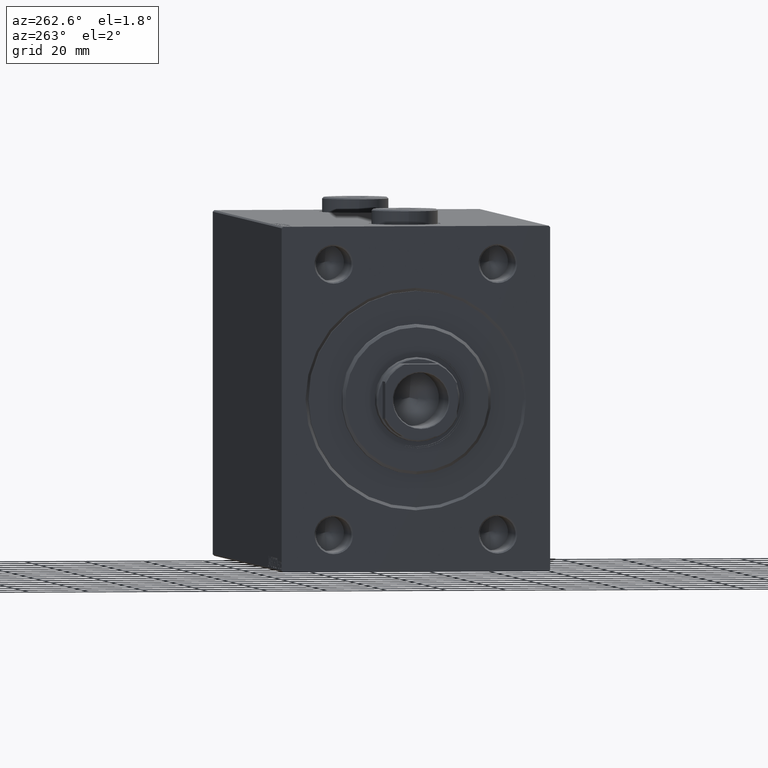
[diagram: clean part render]
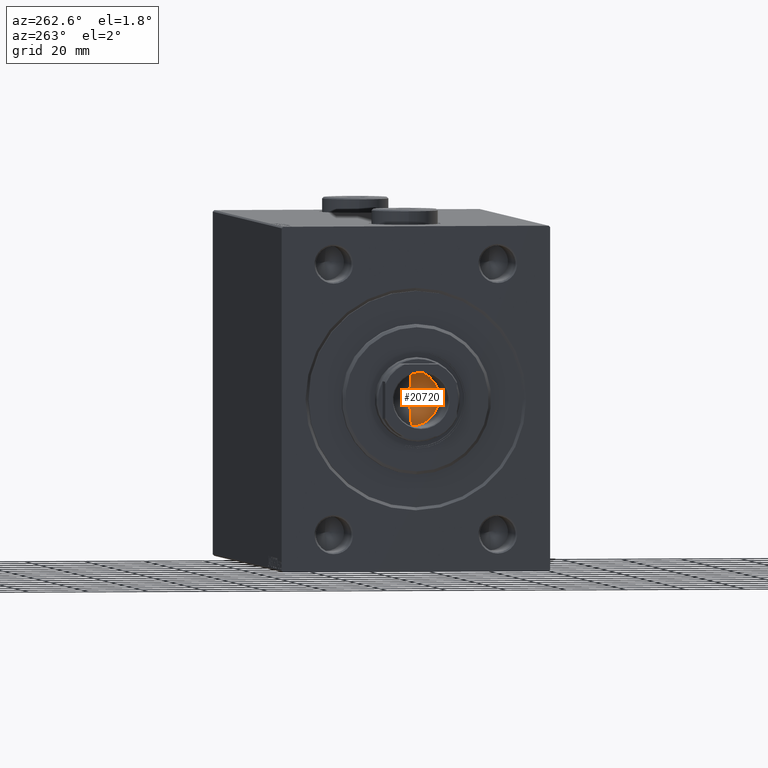
[diagram: same view with one face highlighted and labeled with its STEP entity id]
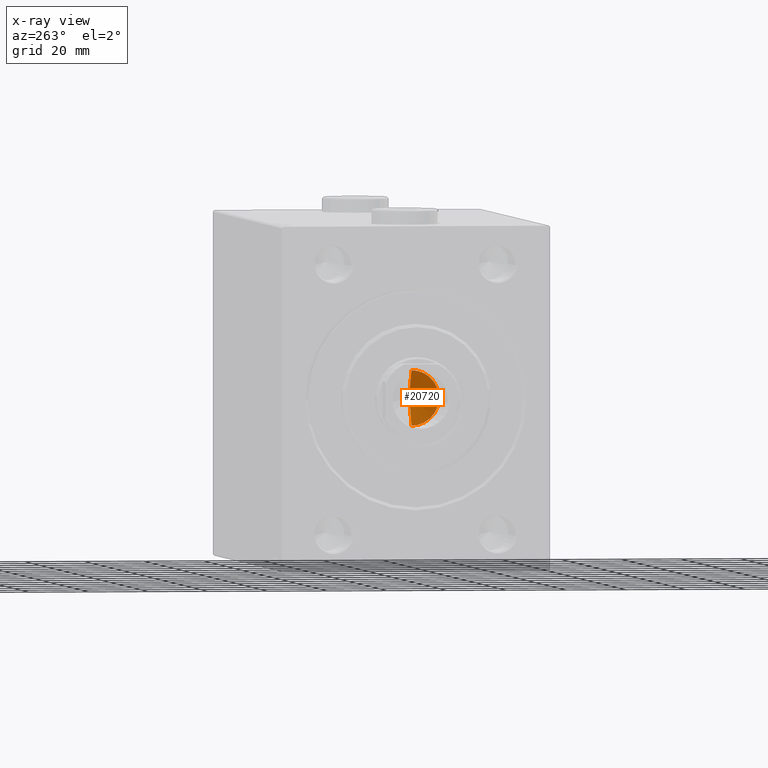
[diagram: x-ray of the same camera — body ghosted, the highlighted face saturated]
A machine part, auxiliary view. The second image highlights one B-rep face of the part: STEP entity #20720.
The next image is the same camera in x-ray: the body ghosted, the highlighted face saturated — about 0% of this face is hidden behind the body in this view.
In plain terms, the highlighted conical surface has half-angle 59 deg.
Its self-contained STEP definition (entity closure, byte-faithful):
#131 = VECTOR ( 'NONE', #41001, 1000.000000000000000 ) ;
#1803 = CARTESIAN_POINT ( 'NONE',  ( 0.000000000000000000, 0.000000000000000000, 149.0000000000000000 ) ) ;
#2464 = DIRECTION ( 'NONE',  ( 1.000000000000000000, 0.000000000000000000, 0.000000000000000000 ) ) ;
#4010 = VECTOR ( 'NONE', #37596, 1000.000000000000000 ) ;
#7447 = VERTEX_POINT ( 'NONE', #8524 ) ;
#8524 = CARTESIAN_POINT ( 'NONE',  ( -6.793016015247754405E-15, 0.000000000000000000, 143.4420392739950501 ) ) ;
#11896 = VERTEX_POINT ( 'NONE', #45362 ) ;
#16250 = EDGE_CURVE ( 'NONE', #7447, #42526, #26893, .T. ) ;
#18723 = EDGE_CURVE ( 'NONE', #42526, #11896, #33256, .T. ) ;
#20032 = FACE_OUTER_BOUND ( 'NONE', #44865, .T. ) ;
#20720 = ADVANCED_FACE ( 'NONE', ( #20032 ), #32001, .F. ) ;
#20946 = ORIENTED_EDGE ( 'NONE', *, *, #21550, .F. ) ;
#21550 = EDGE_CURVE ( 'NONE', #7447, #11896, #24182, .T. ) ;
#24182 = LINE ( 'NONE', #42226, #4010 ) ;
#24417 = AXIS2_PLACEMENT_3D ( 'NONE', #1803, #41099, #34378 ) ;
#26431 = CARTESIAN_POINT ( 'NONE',  ( -9.249999999999994671, 1.132798289211300909E-15, 149.0000000000000000 ) ) ;
#26893 = LINE ( 'NONE', #26431, #131 ) ;
#32001 = CONICAL_SURFACE ( 'NONE', #37893, 9.249999999999994671, 1.029744258676652535 ) ;
#33256 = CIRCLE ( 'NONE', #24417, 9.249999999999994671 ) ;
#34124 = CARTESIAN_POINT ( 'NONE',  ( 0.000000000000000000, 0.000000000000000000, 149.0000000000000000 ) ) ;
#34239 = CARTESIAN_POINT ( 'NONE',  ( -9.249999999999994671, 1.132798289211300909E-15, 149.0000000000000000 ) ) ;
#34378 = DIRECTION ( 'NONE',  ( 1.000000000000000000, 0.000000000000000000, 0.000000000000000000 ) ) ;
#35237 = ORIENTED_EDGE ( 'NONE', *, *, #18723, .T. ) ;
#35513 = ORIENTED_EDGE ( 'NONE', *, *, #16250, .T. ) ;
#37596 = DIRECTION ( 'NONE',  ( 0.8571673007021113344, 0.000000000000000000, 0.5150380749100558209 ) ) ;
#37893 = AXIS2_PLACEMENT_3D ( 'NONE', #34124, #41293, #2464 ) ;
#41001 = DIRECTION ( 'NONE',  ( -0.8571673007021113344, 1.049727191138617463E-16, 0.5150380749100558209 ) ) ;
#41099 = DIRECTION ( 'NONE',  ( -0.000000000000000000, -0.000000000000000000, 1.000000000000000000 ) ) ;
#41293 = DIRECTION ( 'NONE',  ( -0.000000000000000000, -0.000000000000000000, 1.000000000000000000 ) ) ;
#42226 = CARTESIAN_POINT ( 'NONE',  ( 9.249999999999994671, 0.000000000000000000, 149.0000000000000000 ) ) ;
#42526 = VERTEX_POINT ( 'NONE', #34239 ) ;
#44865 = EDGE_LOOP ( 'NONE', ( #20946, #35513, #35237 ) ) ;
#45362 = CARTESIAN_POINT ( 'NONE',  ( 9.249999999999994671, 0.000000000000000000, 149.0000000000000000 ) ) ;